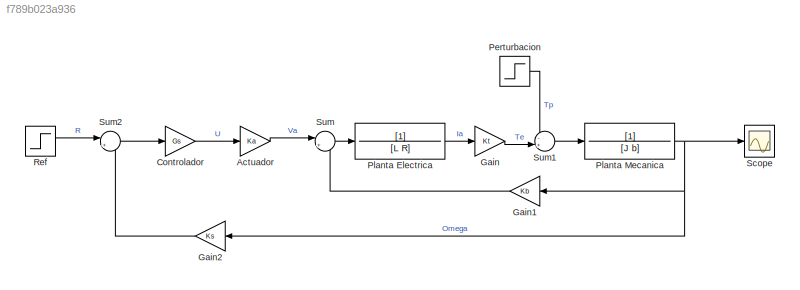
MODEL slx_f789b023a936
KIND model
CONFIG AbsTol = auto
CONFIG EnableMultiTasking = off
CONFIG FixedStep = auto
CONFIG MaxStep = 5e-6
CONFIG MinStep = auto
CONFIG RelTol = 1e-3
CONFIG SampleTimeConstraint = Unconstrained
CONFIG SolverName = VariableStepAuto
CONFIG StartTime = 0.0
CONFIG StopTime = 60e-3
BLOCK [Gain] Actuador
  Gain = Ka
BLOCK [Gain] Controlador
  Gain = Gs
BLOCK [Gain] Gain
  Gain = Kt
BLOCK [Gain] Gain1
  Gain = Kb
BLOCK [Gain] Gain2
  Gain = Ks
BLOCK [Step] Perturbacion
  After = Tp
  SampleTime = 0
  Time = 30e-3
BLOCK [TransferFcn] Planta Electrica
  Denominator = [L R]
BLOCK [TransferFcn] Planta Mecanica
  Denominator = [J b]
BLOCK [Step] Ref
  After = Vref
  SampleTime = 0
  Time = 0
BLOCK [Scope] Scope
  Floating = off
  NumInputPorts = 1
  ScopeSpecificationString = Simulink.scopes.TimeScopeBlockCfg('CurrentConfiguration', extmgr.ConfigurationSet(extmgr.Configuration('Core','General UI',true),extmgr.Configuration('Core','Source UI',true),extmgr.Configuration('Sources','WiredSimulink',true),extmgr.Configuration('Visuals','Time Domain',true,'SerializedDisplays',{struct('MinYLimReal','-359.89478','MaxYLimReal','6274.80665','YLabelReal','','MinYLimMag',' 0.00000'...<+1546ch>
BLOCK [Sum] Sum
  Inputs = |+-
BLOCK [Sum] Sum1
  Inputs = -+|
BLOCK [Sum] Sum2
  Inputs = |+-
LINE Actuador:1 -> Sum:1
LINE Controlador:1 -> Actuador:1
LINE Gain1:1 -> Sum:2
LINE Gain2:1 -> Sum2:2
LINE Gain:1 -> Sum1:2
LINE Perturbacion:1 -> Sum1:1
LINE Planta Electrica:1 -> Gain:1
NET Planta Mecanica:1 -> Gain1:1, Gain2:1, Scope:1
LINE Ref:1 -> Sum2:1
LINE Sum1:1 -> Planta Mecanica:1
LINE Sum2:1 -> Controlador:1
LINE Sum:1 -> Planta Electrica:1
note: NET lines group one-source signal fan-out (src -> all destinations, sorted); 1:1 wires keep LINE
